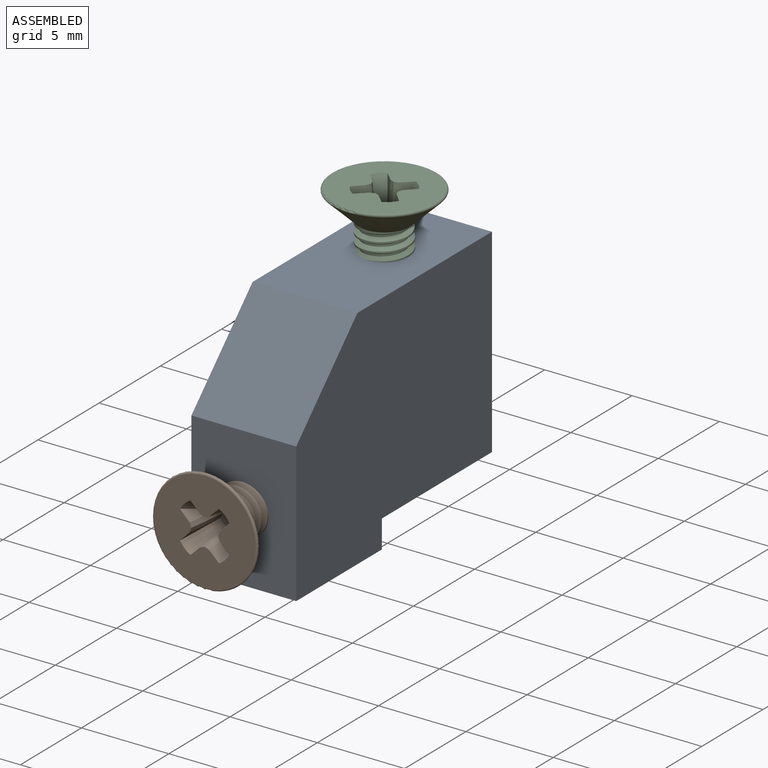
[diagram: assembled view]
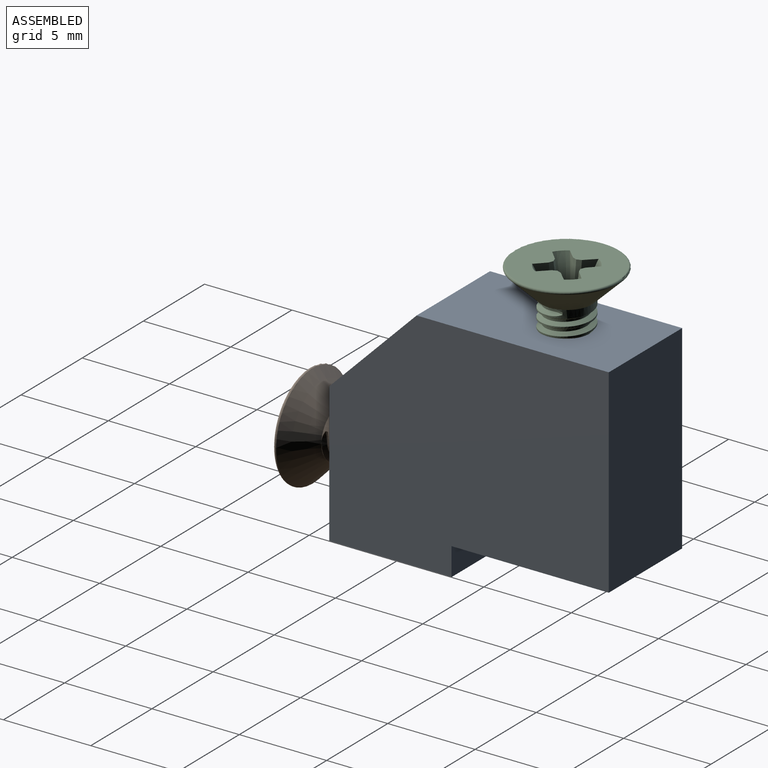
[diagram: assembled view, second angle]
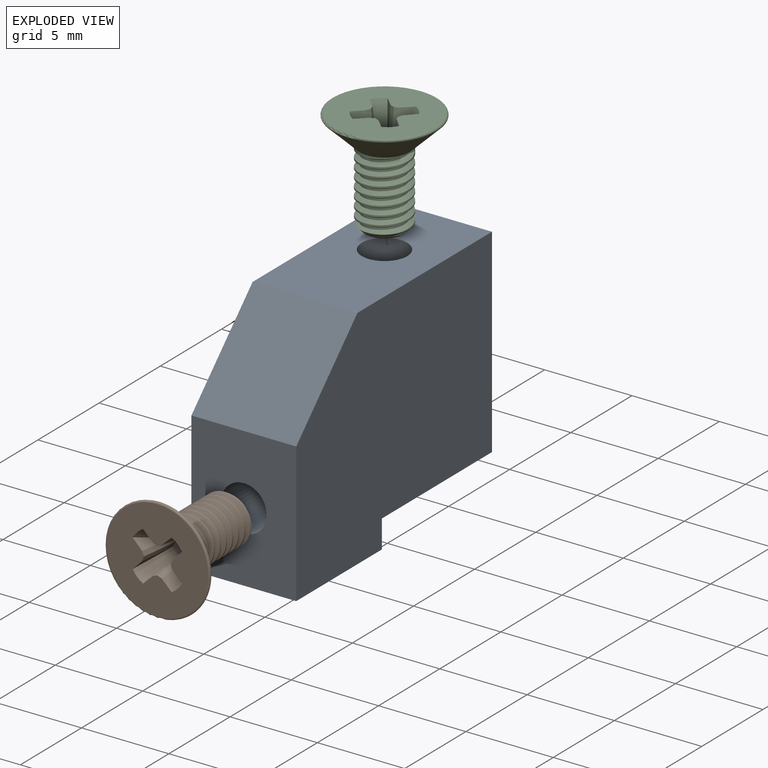
[diagram: exploded view]
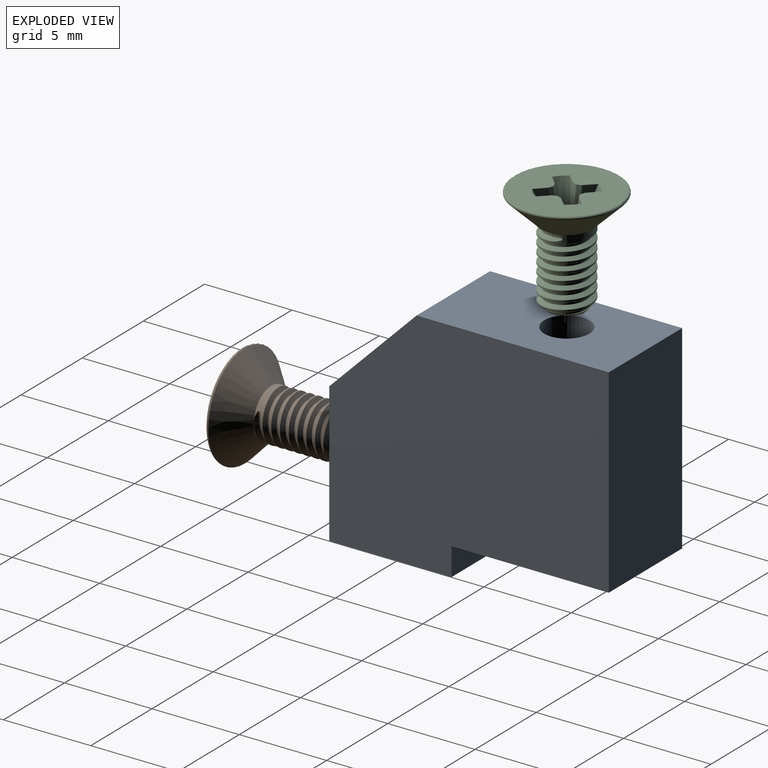
[diagram: exploded view, second angle]
ASSEMBLY  parts=3 mates=2
PART A: 12 faces, bbox 6x16x13 mm
  f0: plane 7x6mm, normal (0,0,-1), area 42mm2, adj f1,f6,f7,f8
  f1: plane 6x1.6mm, normal (0,1,0), area 9.6mm2, adj f0,f2,f7,f8
  f2: plane 9x6mm, normal (0,0,-1), area 48.7mm2, adj f1,f3,f7,f8,f9
  f3: plane 11.4x6mm, normal (0,1,0), area 68.4mm2, adj f2,f4,f7,f8
  f4: plane 11x6mm, normal (0,0,1), area 60.7mm2, adj f3,f5,f7,f8,f9
  f5: plane 6x5mm, normal (0,-0.71,0.71), area 42.4mm2, adj f4,f6,f7,f8
  f6: plane 8x6mm, normal (0,-1,0), area 42.7mm2, adj f0,f5,f7,f8,f10
  f7: plane 16x13mm, normal (1,0,0), area 181.1mm2, adj f0,f1,f2,f3,f4,f5,f6
  f8: plane 16x13mm, normal (-1,0,0), area 181.1mm2, adj f0,f1,f2,f3,f4,f5,f6
  f9: cylinder r=1.3mm len=11.4mm, axis (0,0,1), area 93.1mm2, adj f2,f4
  f10: cylinder r=1.3mm len=9mm, axis (0,-1,0), area 73.5mm2, adj f6,f11
  f11: cone r=0mm half-angle=59deg, axis (0,-1,0), area 6.2mm2, adj f10
PART B: 43 faces, bbox 6.5x6.5x6.2 mm
  f0: plane 5.81x5.81mm, normal (0,0,-1), area 21.5mm2, adj f14,f15,f16,f19,f20,f21,f22,f23
  f1: cone r=1.04mm half-angle=46deg, axis (0,0,-1), area 29.6mm2, adj f3,f42
  f2: plane 2.16x2.16mm, normal (0,0,1), area 3.7mm2, adj f12
  f3: cylinder r=1.44mm len=2.87mm, axis (0,0,1), area 2.1mm2, adj f1,f4,f36,f39,f40,f41
  f4: cylinder r=1.44mm len=2.87mm, axis (0,0,1), area 0.9mm2, adj f3,f5,f36,f37
  f5: cylinder r=1.44mm len=2.87mm, axis (0,0,1), area 0.7mm2, adj f4,f6,f36,f37
  f6: cylinder r=1.44mm len=2.87mm, axis (0,0,1), area 0.8mm2, adj f5,f7,f36,f37
  f7: cylinder r=1.44mm len=2.87mm, axis (0,0,1), area 0.9mm2, adj f6,f8,f36,f37
  f8: cylinder r=1.44mm len=2.87mm, axis (0,0,1), area 0.8mm2, adj f7,f9,f36,f37
  f9: cylinder r=1.44mm len=2.87mm, axis (0,0,1), area 0.8mm2, adj f8,f10,f36,f37
  f10: cylinder r=1.44mm len=2.87mm, axis (0,0,1), area 0.8mm2, adj f9,f11,f13,f36,f37
  f11: cylinder r=1.44mm len=1.11mm, axis (0,0,1), area 0mm2, adj f10,f12,f37
  f12: cone r=1.37mm half-angle=45deg, axis (0,0,-1), area 2.5mm2, adj f2,f11,f13,f36,f37,f38
  f13: cone r=1.37mm half-angle=45deg, axis (0,0,-1), area 0mm2, adj f10,f12,f36
  f14: cone r=1.63mm half-angle=25.2deg, axis (0,0,-1), area 1.6mm2, adj f0,f18,f28,f29,f34,f35
  f15: cone r=1.63mm half-angle=25.2deg, axis (0,0,-1), area 1.6mm2, adj f0,f18,f24,f25,f30,f31
  f16: cone r=1.63mm half-angle=25.2deg, axis (0,0,-1), area 1.6mm2, adj f0,f18,f20,f21,f26,f27
  f17: plane 0.38x0.38mm, normal (0,0,-1), area 0.1mm2, adj f18
  f18: cone r=0.64mm half-angle=70deg, axis (0,0,-1), area 1.1mm2, adj f14,f15,f16,f17,f19,f21,f22,f25
  f19: cone r=1.63mm half-angle=25.2deg, axis (0,0,-1), area 1.6mm2, adj f0,f18,f22,f23,f32,f33
  f20: plane 2.05x0.8mm, normal (-0.69,-0.71,-0.09), area 0.8mm2, adj f0,f16,f21
  f21: plane 2.2x0.4mm, normal (-0.36,-0.93,-0.11), area 0.6mm2, adj f0,f16,f18,f20,f22
  f22: plane 2.2x0.4mm, normal (0.36,-0.93,-0.11), area 0.6mm2, adj f0,f18,f19,f21,f23
  f23: plane 2.05x0.8mm, normal (0.69,-0.71,-0.09), area 0.8mm2, adj f0,f19,f22
  f24: plane 2.05x0.8mm, normal (0.71,-0.69,-0.09), area 0.8mm2, adj f0,f15,f25
  f25: plane 2.2x0.4mm, normal (0.93,-0.36,-0.11), area 0.6mm2, adj f0,f15,f18,f24,f26
  f26: plane 2.2x0.4mm, normal (0.93,0.36,-0.11), area 0.6mm2, adj f0,f16,f18,f25,f27
  f27: plane 2.05x0.8mm, normal (0.71,0.69,-0.09), area 0.8mm2, adj f0,f16,f26
  f28: plane 2.05x0.8mm, normal (0.69,0.71,-0.09), area 0.8mm2, adj f0,f14,f29
  f29: plane 2.2x0.4mm, normal (0.36,0.93,-0.11), area 0.6mm2, adj f0,f14,f18,f28,f30
  f30: plane 2.2x0.4mm, normal (-0.36,0.93,-0.11), area 0.6mm2, adj f0,f15,f18,f29,f31
  f31: plane 2.05x0.8mm, normal (-0.69,0.71,-0.09), area 0.8mm2, adj f0,f15,f30
  f32: plane 2.05x0.8mm, normal (-0.71,0.69,-0.09), area 0.8mm2, adj f0,f19,f33
  f33: plane 2.2x0.4mm, normal (-0.93,0.36,-0.11), area 0.6mm2, adj f0,f18,f19,f32,f34
  f34: plane 2.2x0.4mm, normal (-0.93,-0.36,-0.11), area 0.6mm2, adj f0,f14,f18,f33,f35
  f35: plane 2.05x0.8mm, normal (-0.71,-0.69,-0.09), area 0.8mm2, adj f0,f14,f34
  f36: bspline ~4.3x3.33mm, area 21.1mm2, adj f3,f4,f5,f6,f7,f8,f9,f10
  f37: bspline ~4.25x3.33mm, area 17.9mm2, adj f4,f5,f6,f7,f8,f9,f10,f11
  f38: cylinder r=1.19mm len=4.09mm, axis (0,0,1), area 7.5mm2, adj f12,f36,f37,f39
  f39: bspline ~0.94x0.46mm, area 0.1mm2, adj f3,f38,f40,f41
  f40: bspline ~0.94x0.46mm, area 0.1mm2, adj f3,f36,f39
  f41: bspline ~0.93x0.46mm, area 0.1mm2, adj f3,f37,f39
  f42: torus R=2.9mm, axis (0,0,-1), area 4.4mm2, adj f0,f1
PART C: same geometry as B
PLACE A t=(-5.34,-3.39,2.44)mm fixed
PLACE B rot(axis=(-1,0,0),90deg) t=(-2.34,-6.59,6.44)mm
PLACE C rot(axis=(1,0,0),180deg) t=(-2.34,8.11,18.64)mm
MATE cylindrical B.f3 <-> A.f10  axis (0,1,0) through (-2.34,-0.59,6.44)mm
MATE cylindrical C.f3 <-> A.f9  axis (0,0,-1) through (-2.34,8.11,12.64)mm
